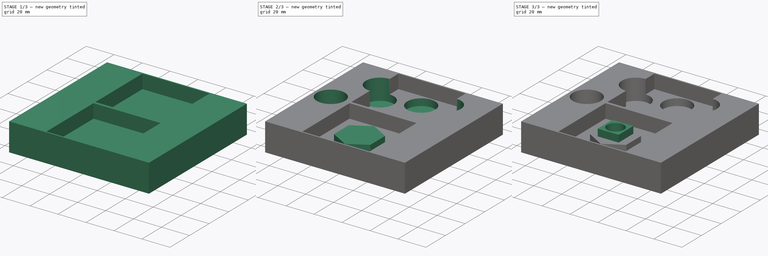
[diagram: build sequence overview — one tinted view per stage of 3, left to right]
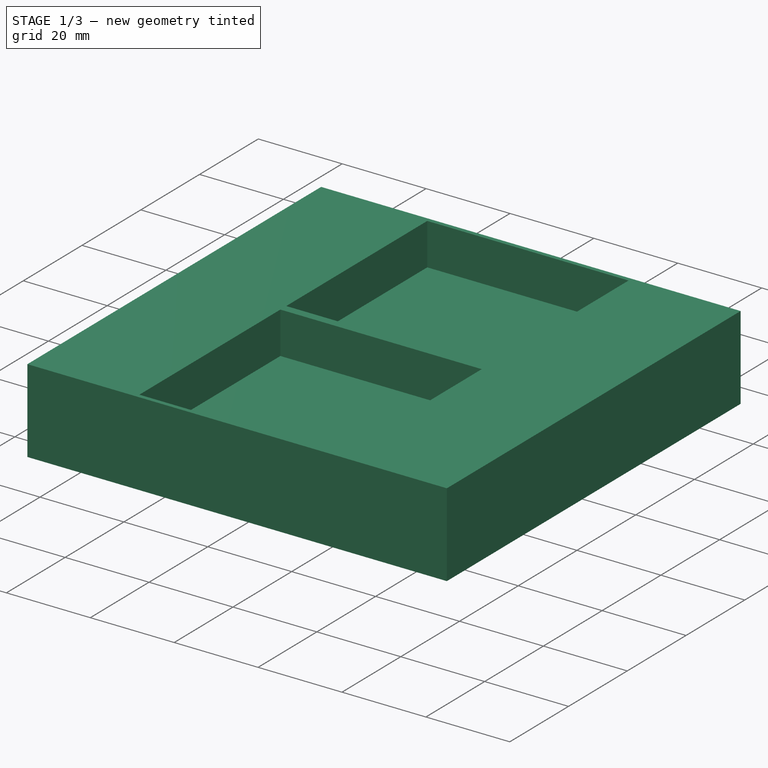
[diagram: stage 1 of 3 — iso view after this stage's code; geometry added in this stage tinted green]
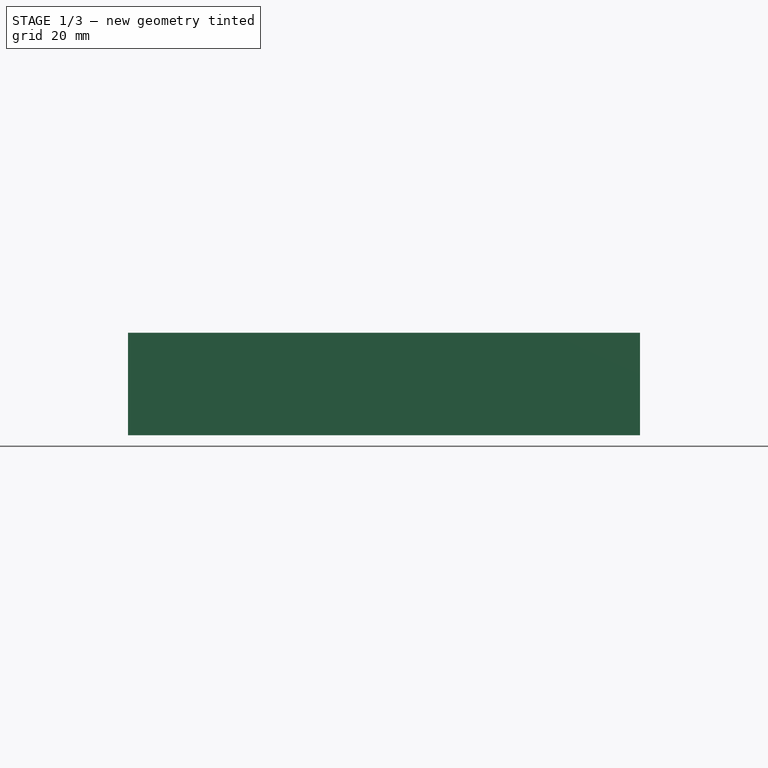
[diagram: stage 1 of 3 — front view after this stage's code; geometry added in this stage tinted green]
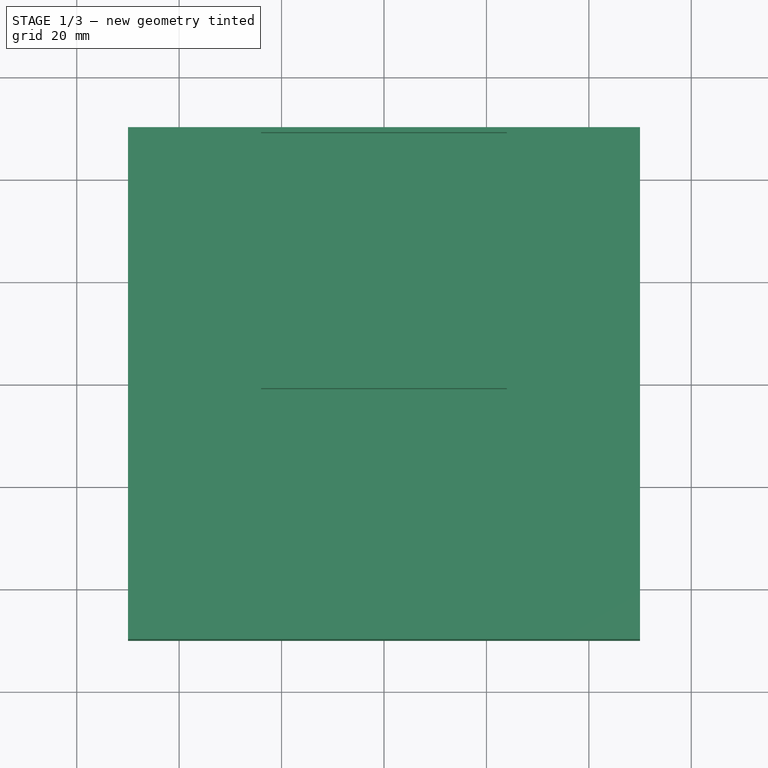
[diagram: stage 1 of 3 — top view after this stage's code; geometry added in this stage tinted green]
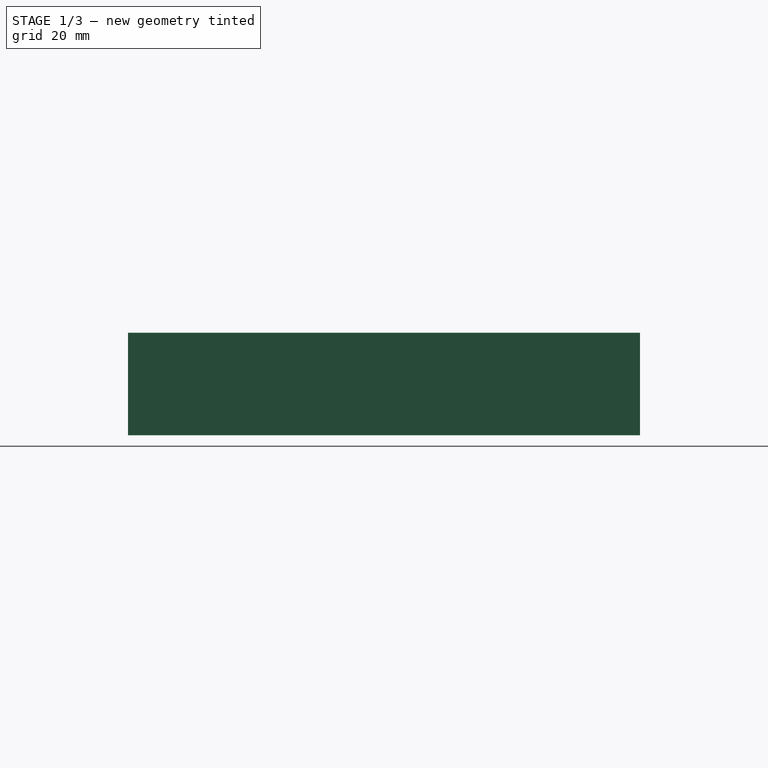
[diagram: stage 1 of 3 — right view after this stage's code; geometry added in this stage tinted green]
FCSTD DOCUMENT  (FreeCAD 0.17R13327 (Git))
Label: pocket
License: All rights reserved
LicenseURL: http://en.wikipedia.org/wiki/All_rights_reserved
objects: Sketcher::SketchObject×6, PartDesign::Pad×3, PartDesign::Pocket×3, PartDesign::Body×1
note: 19 computed .brp shape members not serialized (recipe doc carries the construction recipe); baked Part::Feature solids carry a one-line shape summary decoded from their .brp

FEATURE [Sketcher::SketchObject] Sketch
  MapMode = 5
  Support = -> [XY_Plane]
  sketch-geometry (4):
    g0: LineSegment StartX=-50 StartY=50 StartZ=0 EndX=50 EndY=50 EndZ=0
    g1: LineSegment StartX=50 StartY=50 StartZ=0 EndX=50 EndY=-50 EndZ=0
    g2: LineSegment StartX=50 StartY=-50 StartZ=0 EndX=-50 EndY=-50 EndZ=0
    g3: LineSegment StartX=-50 StartY=-50 StartZ=0 EndX=-50 EndY=50 EndZ=0
  constraints (11):
    c: Coincident(g0,g1)
    c: Coincident(g1,g2)
    c: Coincident(g2,g3)
    c: Coincident(g3,g0)
    c: Horizontal(g0)
    c: Horizontal(g2)
    c: Vertical(g1)
    c: Vertical(g3)
    c: Symmetric(g1,g0,g-1)
    c: Equal(g1,g0)
    c: DistanceY(g1,g1) = 100
FEATURE [PartDesign::Pad] Pad
  Length = 20
  Length2 = 100
  Profile = -> Sketch
  Reversed = true
  Type = 0
FEATURE [Sketcher::SketchObject] Sketch001
  MapMode = 5
  Support = -> [Pad]
  sketch-geometry (8):
    g0: LineSegment StartX=-24 StartY=49 StartZ=0 EndX=24 EndY=49 EndZ=0
    g1: LineSegment StartX=24 StartY=49 StartZ=0 EndX=24 EndY=1 EndZ=0
    g2: LineSegment StartX=24 StartY=1 StartZ=0 EndX=-24 EndY=1 EndZ=0
    g3: LineSegment StartX=-24 StartY=1 StartZ=0 EndX=-24 EndY=49 EndZ=0
    g4: LineSegment StartX=-24 StartY=-1 StartZ=0 EndX=24 EndY=-1 EndZ=0
    g5: LineSegment StartX=24 StartY=-1 StartZ=0 EndX=24 EndY=-49 EndZ=0
    g6: LineSegment StartX=24 StartY=-49 StartZ=0 EndX=-24 EndY=-49 EndZ=0
    g7: LineSegment StartX=-24 StartY=-49 StartZ=0 EndX=-24 EndY=-1 EndZ=0
  constraints (23):
    c: Coincident(g0,g1)
    c: Coincident(g1,g2)
    c: Coincident(g2,g3)
    c: Coincident(g3,g0)
    c: Horizontal(g0)
    c: Horizontal(g2)
    c: Vertical(g1)
    c: Vertical(g3)
    c: Coincident(g4,g5)
    c: Coincident(g5,g6)
    c: Coincident(g6,g7)
    c: Coincident(g7,g4)
    c: Horizontal(g4)
    c: Horizontal(g6)
    c: Vertical(g5)
    c: Vertical(g7)
    c: Equal(g1,g5)
    c: DistanceY(g4,g1) = 2
    c: Symmetric(g4,g1,g-1)
    c: Symmetric(g4,g4,g-2)
    c: Equal(g2,g4)
    c: DistanceY(g5,g5) = 48
    c: DistanceX(g6,g6) = 48
FEATURE [PartDesign::Pocket] Pocket
  BaseFeature = -> Pad
  Length = 10
  Length2 = 100
  Profile = -> Sketch001
  Type = 0
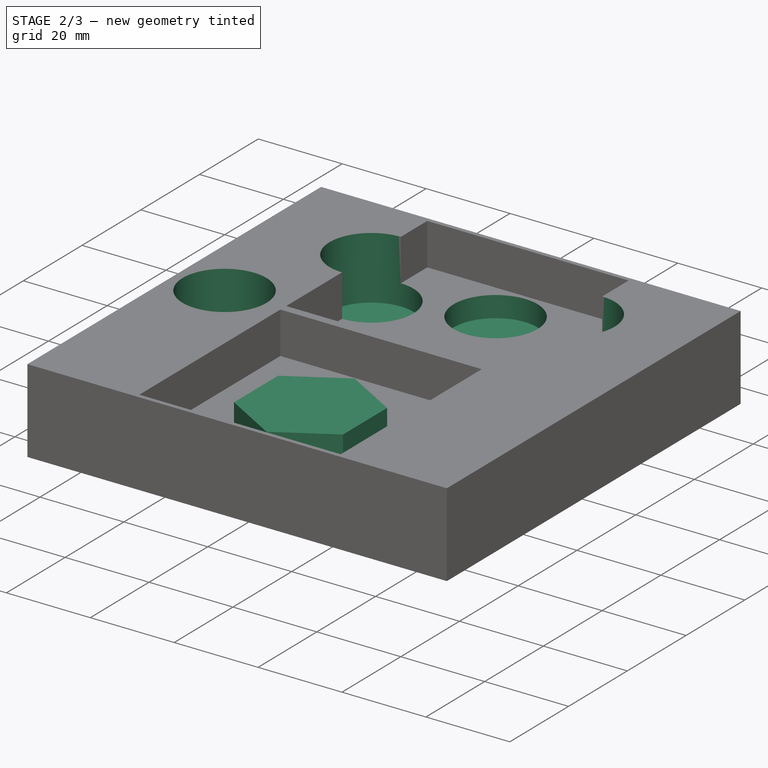
[diagram: stage 2 of 3 — iso view after this stage's code; geometry added in this stage tinted green]
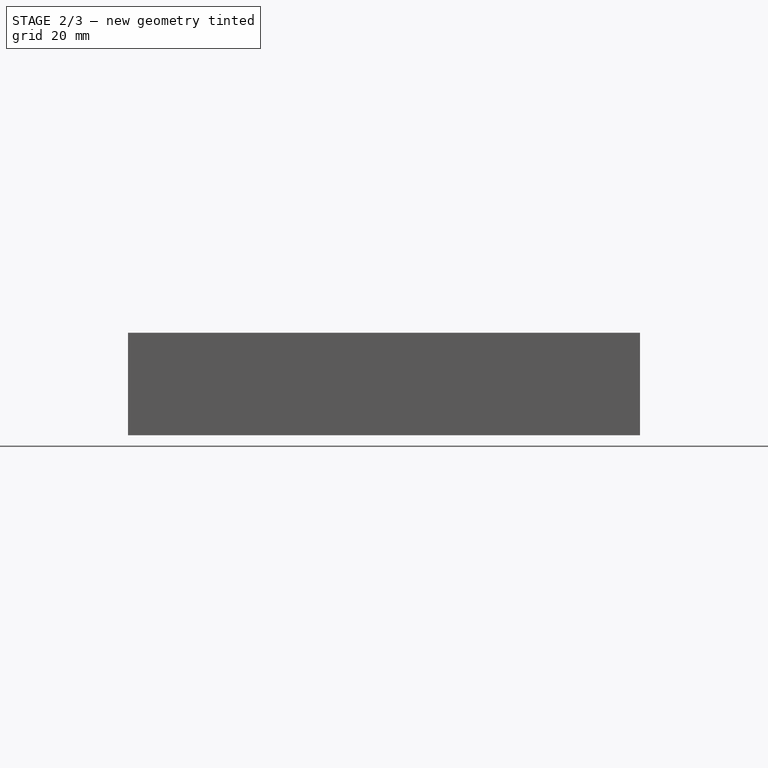
[diagram: stage 2 of 3 — front view after this stage's code; geometry added in this stage tinted green]
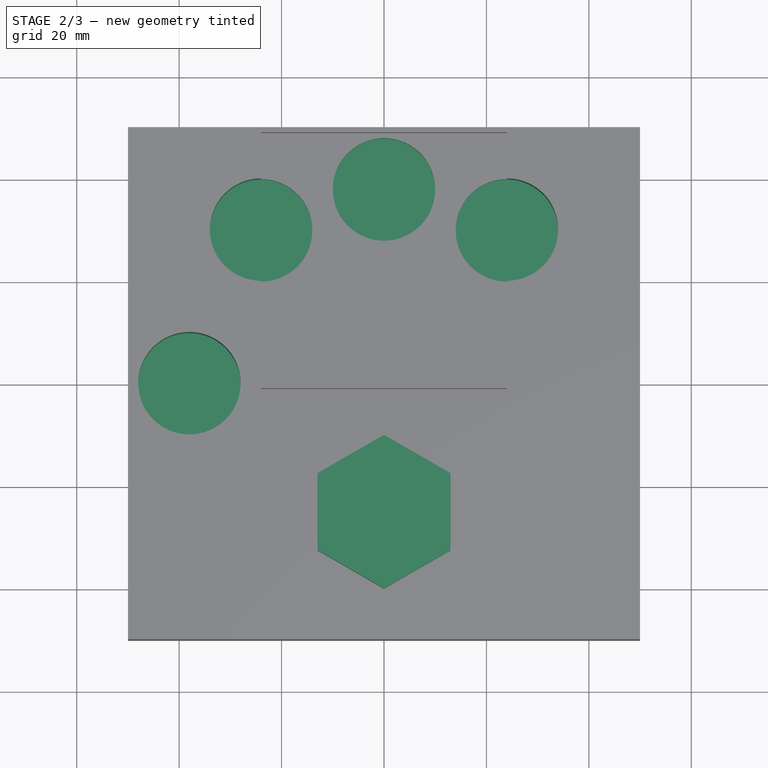
[diagram: stage 2 of 3 — top view after this stage's code; geometry added in this stage tinted green]
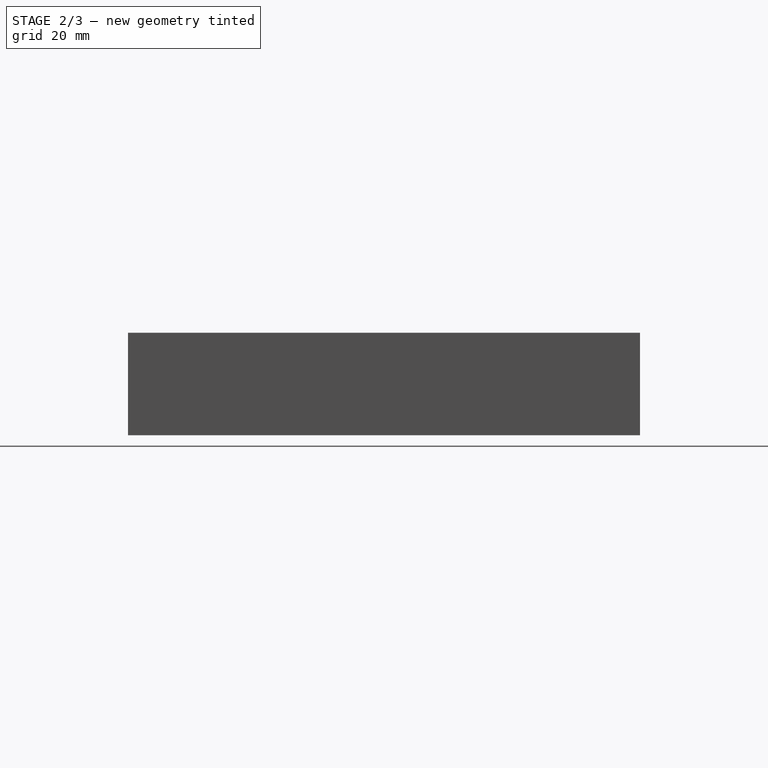
[diagram: stage 2 of 3 — right view after this stage's code; geometry added in this stage tinted green]
FEATURE [Sketcher::SketchObject] Sketch002
  MapMode = 5
  Support = -> [Pocket]
  sketch-geometry (4):
    g0: Circle CenterX=-24 CenterY=30 CenterZ=0 NormalX=0 NormalY=0 NormalZ=1 AngleXU=0 Radius=10
    g1: Circle CenterX=-38 CenterY=0 CenterZ=0 NormalX=0 NormalY=0 NormalZ=1 AngleXU=0 Radius=10
    g2: Circle CenterX=0 CenterY=38 CenterZ=0 NormalX=0 NormalY=0 NormalZ=1 AngleXU=0 Radius=10
    g3: Circle CenterX=24 CenterY=30 CenterZ=0 NormalX=0 NormalY=0 NormalZ=1 AngleXU=0 Radius=10
  constraints (12):
    c: PointOnObject(g1,g-1)
    c: Radius(g1) = 10
    c: Equal(g1,g0)
    c: Equal(g1,g2)
    c: DistanceX(g1) = -38
    c: DistanceX(g0) = -24
    c: PointOnObject(g2,g-2)
    c: DistanceY(g0) = 30
    c: DistanceY(g2) = 38
    c: DistanceY(g3) = 30
    c: DistanceX(g3) = 24
    c: Equal(g3,g2)
FEATURE [PartDesign::Pocket] Pocket001
  BaseFeature = -> Pocket
  Length = 15
  Length2 = 100
  Profile = -> Sketch002
  Type = 0
FEATURE [Sketcher::SketchObject] Sketch003
  MapMode = 5
  Placement = pos=(0,0,-10) rot=(0,0,1;0rad)
  sketch-geometry (7):
    g0: LineSegment StartX=12.9904 StartY=-32.5 StartZ=0 EndX=12.9904 EndY=-17.5 EndZ=0
    g1: LineSegment StartX=12.9904 StartY=-17.5 StartZ=0 EndX=2e-12 EndY=-10 EndZ=0
    g2: LineSegment StartX=2e-12 StartY=-10 StartZ=0 EndX=-12.9904 EndY=-17.5 EndZ=0
    g3: LineSegment StartX=-12.9904 StartY=-17.5 StartZ=0 EndX=-12.9904 EndY=-32.5 EndZ=0
    g4: LineSegment StartX=-12.9904 StartY=-32.5 StartZ=0 EndX=0 EndY=-40 EndZ=0
    g5: LineSegment StartX=0 StartY=-40 StartZ=0 EndX=12.9904 EndY=-32.5 EndZ=0
    g6: Circle [constr] CenterX=0 CenterY=-25 CenterZ=0 NormalX=0 NormalY=0 NormalZ=1 AngleXU=0 Radius=15
  constraints (17):
    c: Coincident(g0,g1)
    c: Coincident(g1,g2)
    c: Coincident(g2,g3)
    c: Coincident(g3,g4)
    c: Coincident(g4,g5)
    c: Coincident(g5,g0)
    c: Equal(g0, g1-g5) x5
    c: PointOnObject(g0,g6)
    c: PointOnObject(g1,g6)
    c: PointOnObject(g2,g6)
    c: PointOnObject(g3,g6)
    c: PointOnObject(g4,g6)
    c: PointOnObject(g5,g6)
    c: PointOnObject(g6,g-2)
    c: DistanceY(g6) = -25
    c: Radius(g6) = 15
    c: PointOnObject(g4,g-2)
FEATURE [PartDesign::Pad] Pad001
  BaseFeature = -> Pocket001
  Length = 5
  Length2 = 100
  Profile = -> Sketch003
  Type = 0
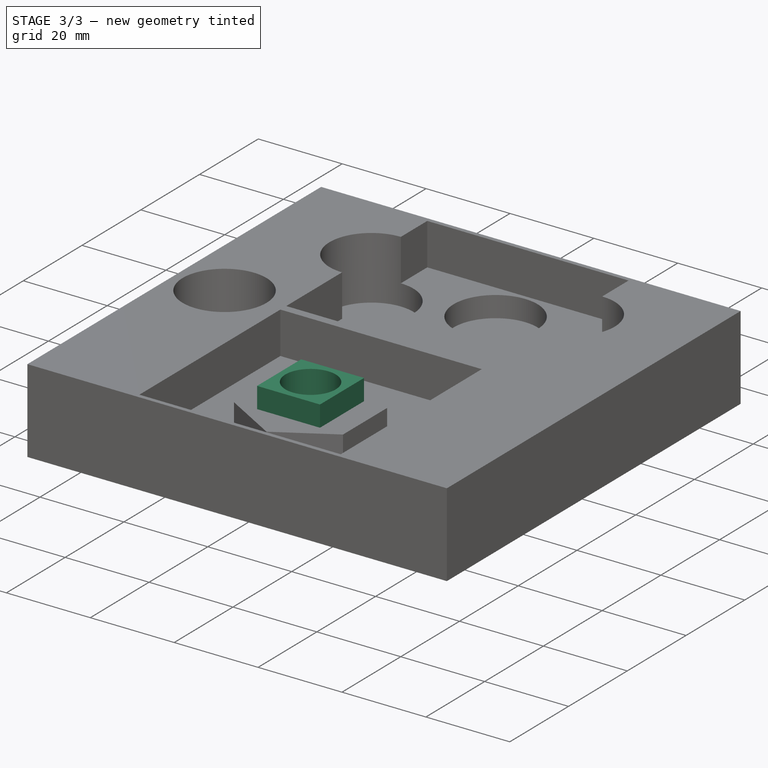
[diagram: stage 3 of 3 — iso view after this stage's code; geometry added in this stage tinted green]
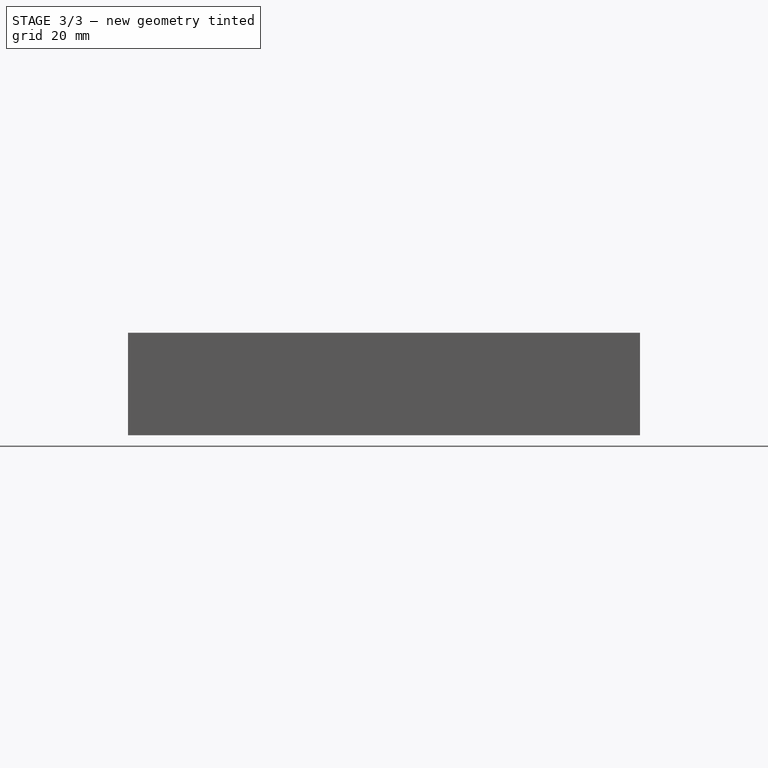
[diagram: stage 3 of 3 — front view after this stage's code; geometry added in this stage tinted green]
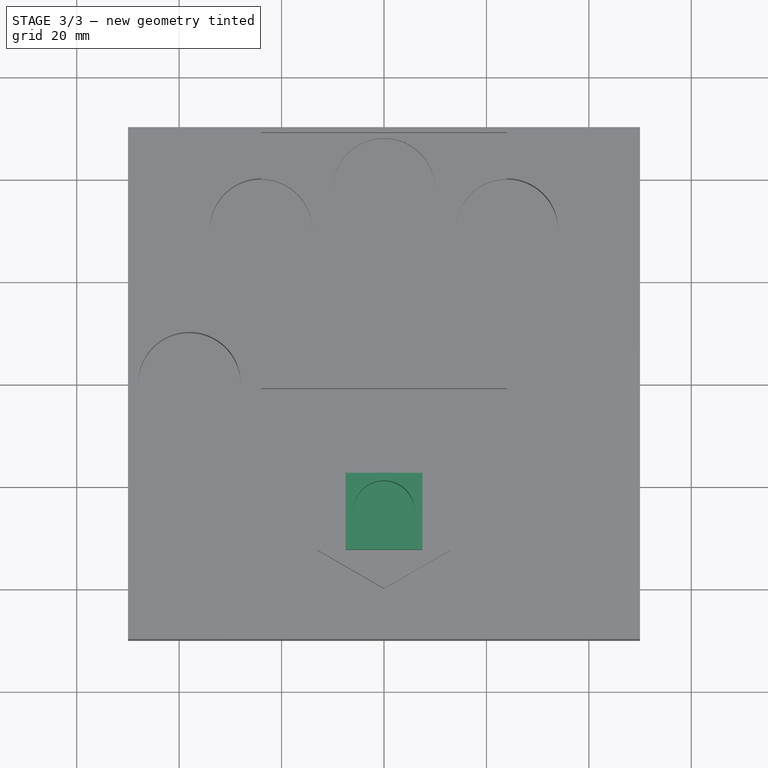
[diagram: stage 3 of 3 — top view after this stage's code; geometry added in this stage tinted green]
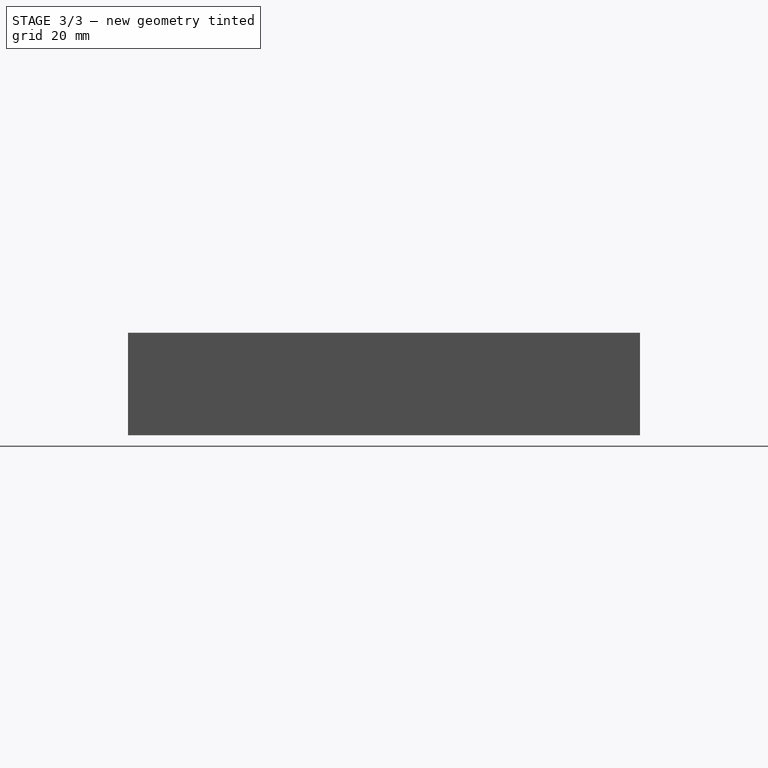
[diagram: stage 3 of 3 — right view after this stage's code; geometry added in this stage tinted green]
FEATURE [Sketcher::SketchObject] Sketch004
  MapMode = 5
  Placement = pos=(0,0,-5) rot=(0,0,1;0rad)
  Support = -> [Pad001]
  sketch-geometry (5):
    g0: GeomPoint X=0 Y=-25 Z=0
    g1: LineSegment StartX=-7.5 StartY=-17.5 StartZ=0 EndX=7.5 EndY=-17.5 EndZ=0
    g2: LineSegment StartX=7.5 StartY=-17.5 StartZ=0 EndX=7.5 EndY=-32.5 EndZ=0
    g3: LineSegment StartX=7.5 StartY=-32.5 StartZ=0 EndX=-7.5 EndY=-32.5 EndZ=0
    g4: LineSegment StartX=-7.5 StartY=-32.5 StartZ=0 EndX=-7.5 EndY=-17.5 EndZ=0
  constraints (13):
    c: PointOnObject(g0,g-2)
    c: Coincident(g1,g2)
    c: Coincident(g2,g3)
    c: Coincident(g3,g4)
    c: Coincident(g4,g1)
    c: Horizontal(g1)
    c: Horizontal(g3)
    c: Vertical(g2)
    c: Vertical(g4)
    c: DistanceY(g0) = -25
    c: Symmetric(g1,g3,g0)
    c: Equal(g2,g1)
    c: DistanceY(g2,g2) = 15
FEATURE [PartDesign::Pad] Pad002
  BaseFeature = -> Pad001
  Length = 5
  Length2 = 100
  Profile = -> Sketch004
  Type = 0
FEATURE [Sketcher::SketchObject] Sketch005
  MapMode = 5
  Support = -> [Pad002]
  sketch-geometry (1):
    g0: Circle CenterX=0 CenterY=-25 CenterZ=0 NormalX=0 NormalY=0 NormalZ=1 AngleXU=0 Radius=6
  constraints (3):
    c: PointOnObject(g0,g-2)
    c: DistanceY(g0) = -25
    c: Radius(g0) = 6
FEATURE [PartDesign::Pocket] Pocket002
  BaseFeature = -> Pad002
  Length = 10
  Length2 = 100
  Profile = -> Sketch005
  Type = 0
FEATURE [PartDesign::Body] Body
  Group = -> [Sketch,Pad,Sketch001,Pocket,Sketch002,Pocket001,Sketch003,Pad001,Sketch004,Pad002,Sketch005,Pocket002]
  Origin = -> Origin
  Tip = -> Pocket002
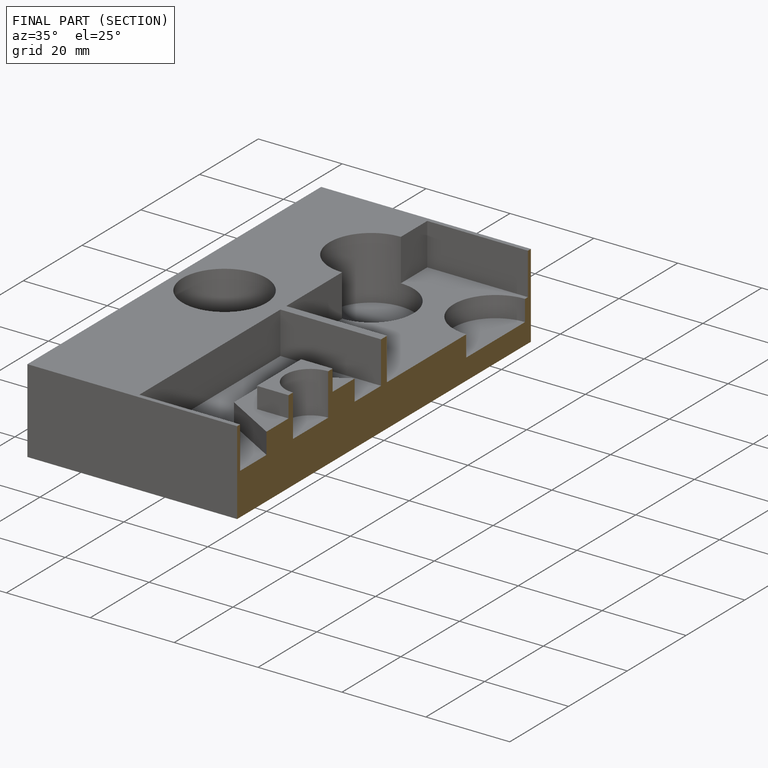
[diagram: finished part — half-section view (interior)]
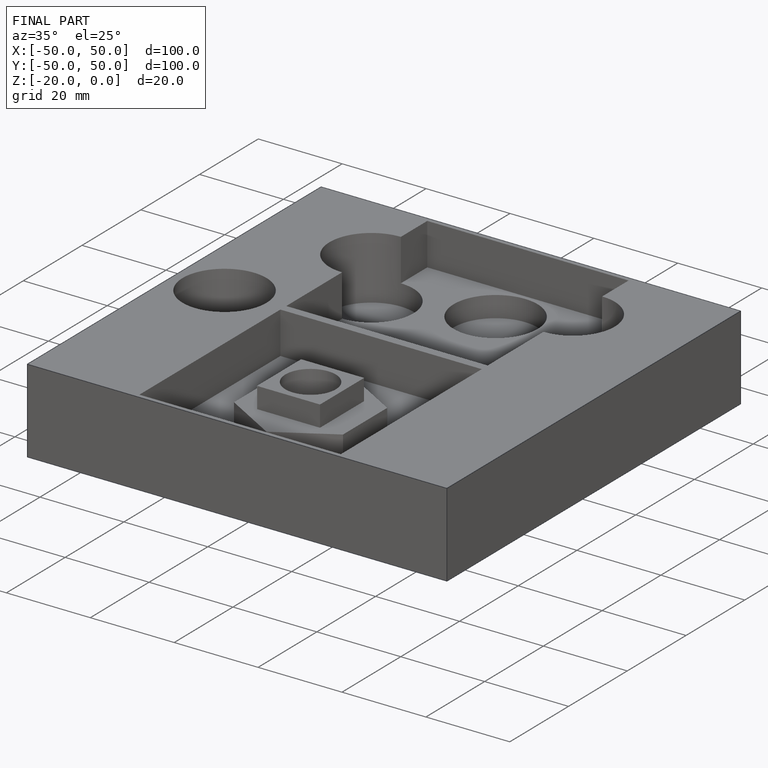
[diagram: finished part — iso view with bounding-box wireframe]
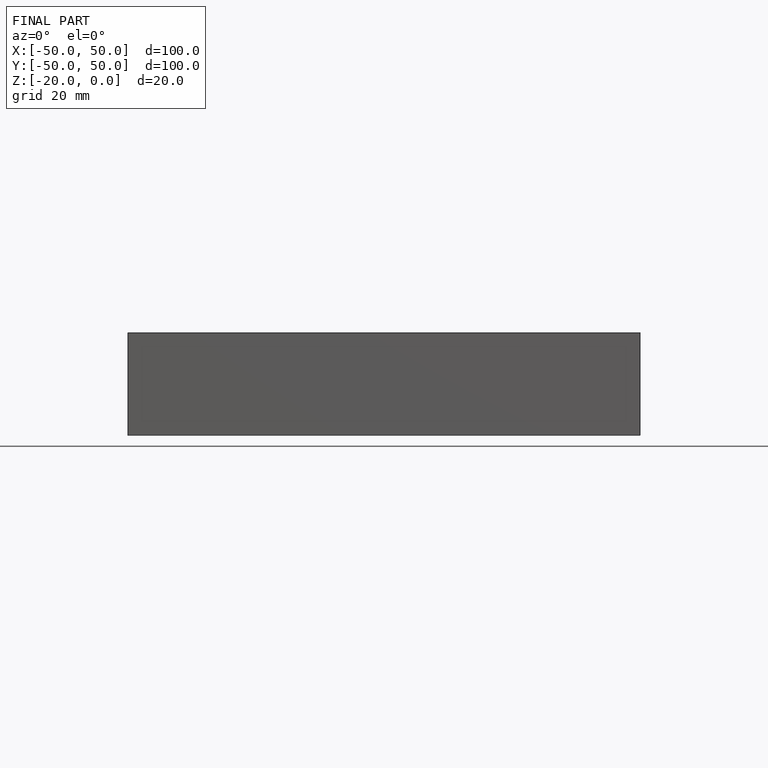
[diagram: finished part — front view with bounding-box wireframe]
